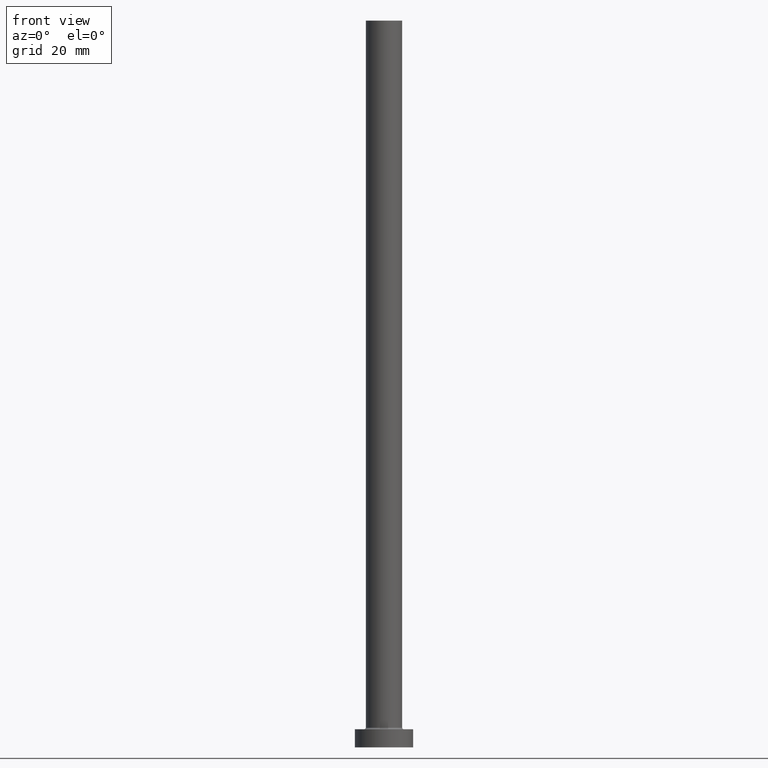
[diagram: clean part render]
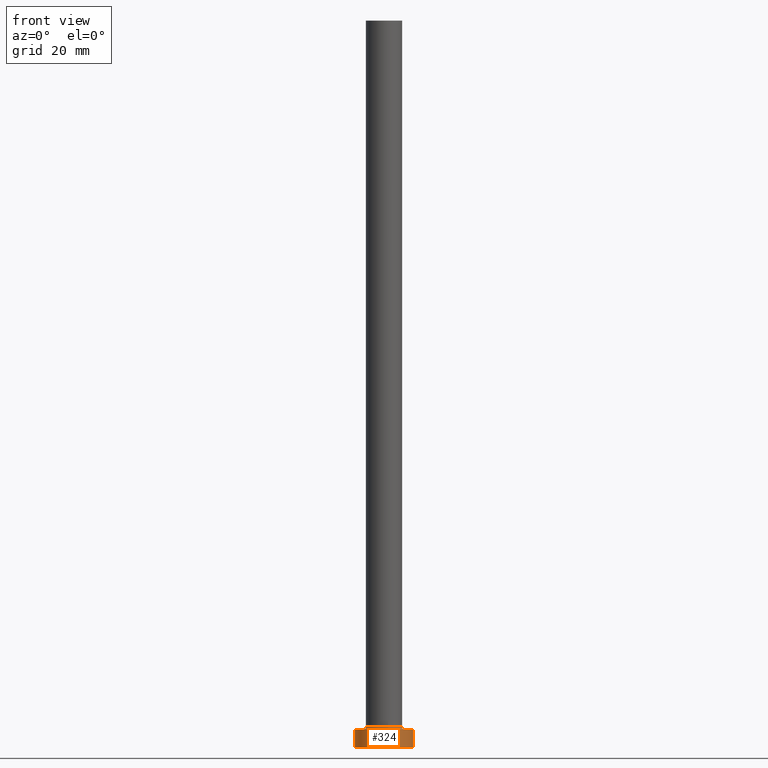
[diagram: same view with one face highlighted and labeled with its STEP entity id]
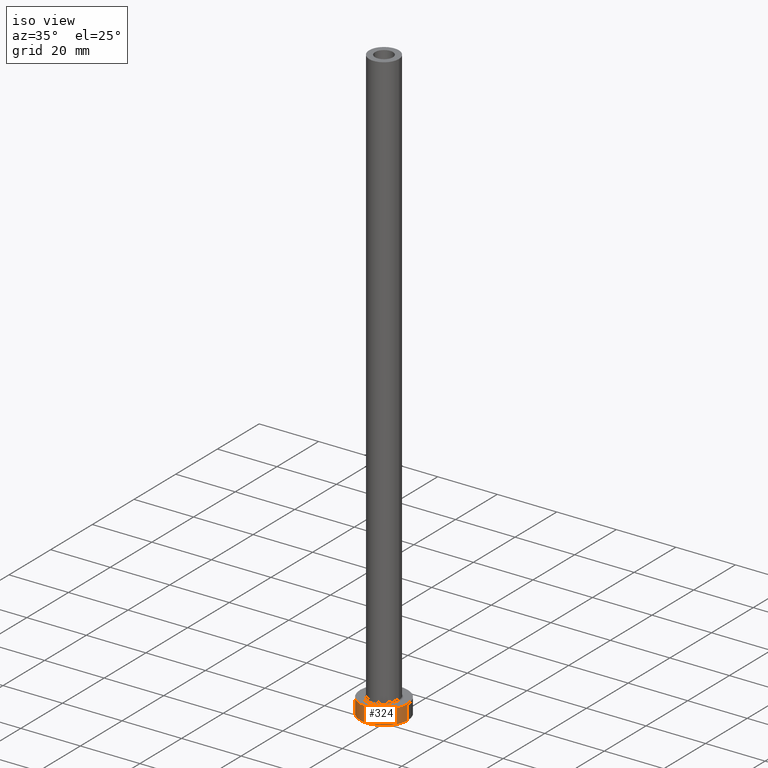
[diagram: same view with one face highlighted and labeled with its STEP entity id]
A machine part, front view. The second image highlights one B-rep face of the part: STEP entity #324.
A second angle (iso view) of the same face is appended — the face is thin or edge-on in the first view.
In plain terms, the highlighted cylindrical surface (edge-blend (fillet) strip) has radius 8 mm, axis along (-0, -0, -1).
Its self-contained STEP definition (entity closure, byte-faithful):
#30 = EDGE_CURVE ( 'NONE', #363, #66, #362, .T. ) ;
#37 = CARTESIAN_POINT ( 'NONE',  ( 8.000000000000000000, 9.797174393178825657E-16, 5.000000000000000000 ) ) ;
#62 = DIRECTION ( 'NONE',  ( 1.000000000000000000, 0.000000000000000000, 0.000000000000000000 ) ) ;
#66 = VERTEX_POINT ( 'NONE', #460 ) ;
#78 = AXIS2_PLACEMENT_3D ( 'NONE', #102, #143, #380 ) ;
#91 = VERTEX_POINT ( 'NONE', #255 ) ;
#102 = CARTESIAN_POINT ( 'NONE',  ( 0.000000000000000000, 0.000000000000000000, 5.000000000000000000 ) ) ;
#105 = VERTEX_POINT ( 'NONE', #353 ) ;
#122 = CIRCLE ( 'NONE', #243, 8.000000000000000000 ) ;
#128 = DIRECTION ( 'NONE',  ( -0.000000000000000000, -0.000000000000000000, -1.000000000000000000 ) ) ;
#129 = ORIENTED_EDGE ( 'NONE', *, *, #267, .T. ) ;
#130 = DIRECTION ( 'NONE',  ( 0.000000000000000000, 0.000000000000000000, 1.000000000000000000 ) ) ;
#143 = DIRECTION ( 'NONE',  ( -0.000000000000000000, -0.000000000000000000, -1.000000000000000000 ) ) ;
#153 = CARTESIAN_POINT ( 'NONE',  ( 0.000000000000000000, 0.000000000000000000, 5.000000000000000000 ) ) ;
#166 = EDGE_CURVE ( 'NONE', #105, #66, #122, .T. ) ;
#202 = VECTOR ( 'NONE', #213, 1000.000000000000000 ) ;
#213 = DIRECTION ( 'NONE',  ( -0.000000000000000000, -0.000000000000000000, -1.000000000000000000 ) ) ;
#224 = AXIS2_PLACEMENT_3D ( 'NONE', #153, #452, #450 ) ;
#235 = LINE ( 'NONE', #365, #237 ) ;
#237 = VECTOR ( 'NONE', #128, 1000.000000000000000 ) ;
#243 = AXIS2_PLACEMENT_3D ( 'NONE', #415, #130, #62 ) ;
#252 = EDGE_CURVE ( 'NONE', #91, #363, #426, .T. ) ;
#255 = CARTESIAN_POINT ( 'NONE',  ( -8.000000000000000000, 0.000000000000000000, 5.000000000000000000 ) ) ;
#267 = EDGE_CURVE ( 'NONE', #91, #105, #235, .T. ) ;
#271 = ORIENTED_EDGE ( 'NONE', *, *, #252, .F. ) ;
#307 = CYLINDRICAL_SURFACE ( 'NONE', #78, 8.000000000000000000 ) ;
#310 = CARTESIAN_POINT ( 'NONE',  ( 8.000000000000000000, 9.797174393178825657E-16, 5.000000000000000000 ) ) ;
#312 = EDGE_LOOP ( 'NONE', ( #381, #271, #129, #337 ) ) ;
#324 = ADVANCED_FACE ( 'NONE', ( #442 ), #307, .T. ) ;
#337 = ORIENTED_EDGE ( 'NONE', *, *, #166, .T. ) ;
#353 = CARTESIAN_POINT ( 'NONE',  ( -8.000000000000000000, 0.000000000000000000, 0.000000000000000000 ) ) ;
#362 = LINE ( 'NONE', #37, #202 ) ;
#363 = VERTEX_POINT ( 'NONE', #310 ) ;
#365 = CARTESIAN_POINT ( 'NONE',  ( -8.000000000000000000, 0.000000000000000000, 5.000000000000000000 ) ) ;
#380 = DIRECTION ( 'NONE',  ( -1.000000000000000000, 0.000000000000000000, 0.000000000000000000 ) ) ;
#381 = ORIENTED_EDGE ( 'NONE', *, *, #30, .F. ) ;
#415 = CARTESIAN_POINT ( 'NONE',  ( 0.000000000000000000, 0.000000000000000000, 0.000000000000000000 ) ) ;
#426 = CIRCLE ( 'NONE', #224, 8.000000000000000000 ) ;
#442 = FACE_OUTER_BOUND ( 'NONE', #312, .T. ) ;
#450 = DIRECTION ( 'NONE',  ( 1.000000000000000000, 0.000000000000000000, 0.000000000000000000 ) ) ;
#452 = DIRECTION ( 'NONE',  ( 0.000000000000000000, 0.000000000000000000, 1.000000000000000000 ) ) ;
#460 = CARTESIAN_POINT ( 'NONE',  ( 8.000000000000000000, 9.797174393178825657E-16, 0.000000000000000000 ) ) ;